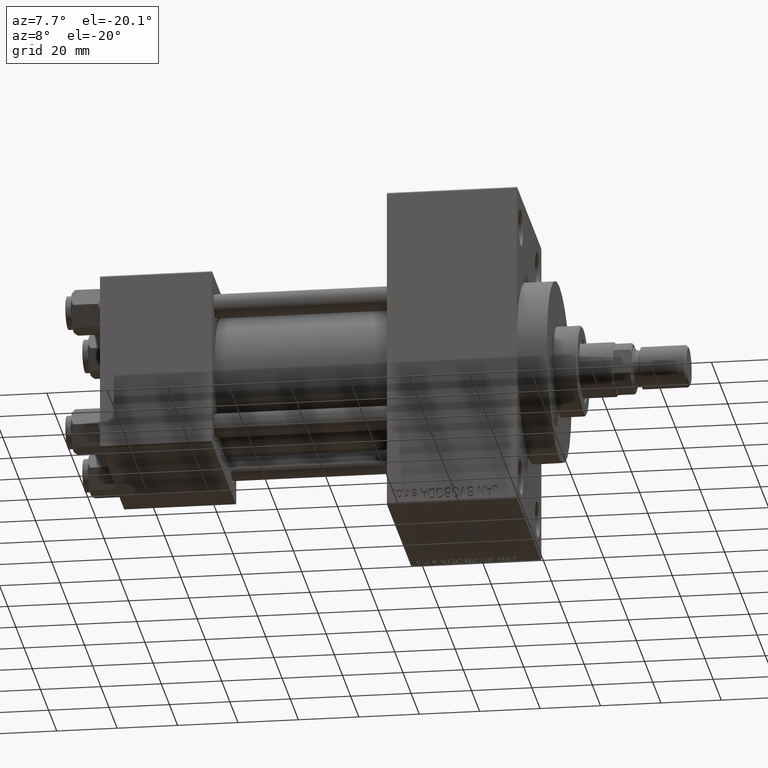
[diagram: clean part render]
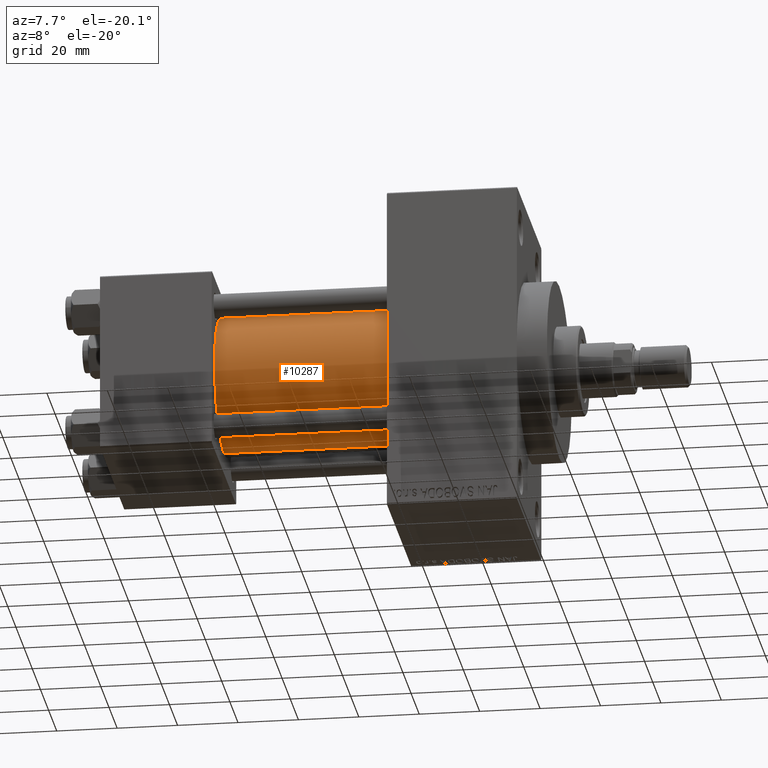
[diagram: same view with one face highlighted and labeled with its STEP entity id]
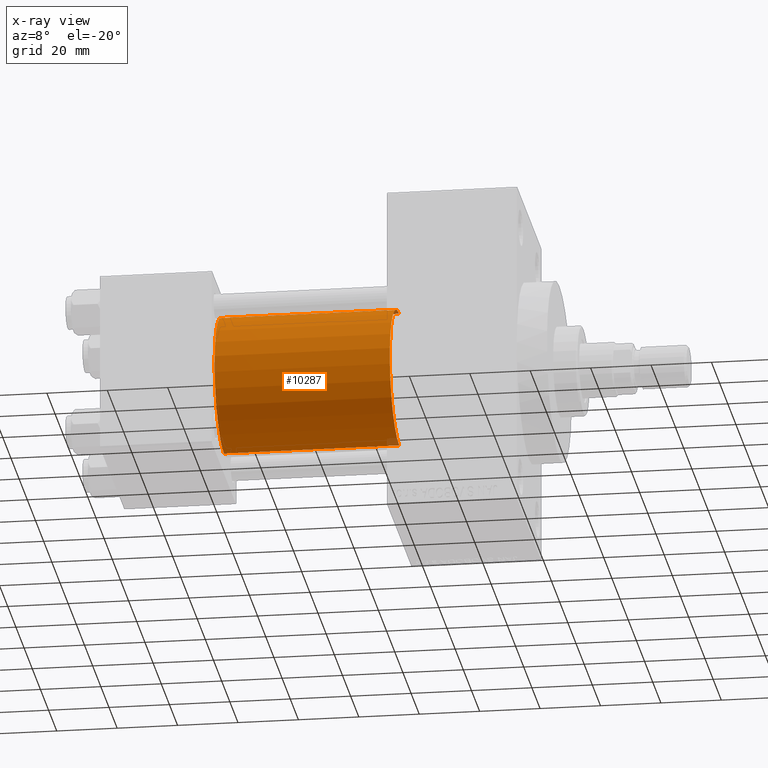
[diagram: x-ray of the same camera — body ghosted, the highlighted face saturated]
A machine part, auxiliary view. The second image highlights one B-rep face of the part: STEP entity #10287.
The next image is the same camera in x-ray: the body ghosted, the highlighted face saturated — about 0% of this face is hidden behind the body in this view.
In plain terms, the highlighted cylindrical surface (partial cylindrical patch) has radius 23 mm, axis along (-1, -0, -0).
Its self-contained STEP definition (entity closure, byte-faithful):
#831 = EDGE_CURVE ( 'NONE', #44845, #29918, #25729, .T. ) ;
#2214 = CARTESIAN_POINT ( 'NONE',  ( 95.00000000000000000, 2.146024240737012665E-16, -23.00000000000000000 ) ) ;
#9807 = EDGE_LOOP ( 'NONE', ( #16737, #47842, #45890, #11962 ) ) ;
#10287 = ADVANCED_FACE ( 'NONE', ( #14788 ), #30908, .T. ) ;
#10947 = CARTESIAN_POINT ( 'NONE',  ( 37.00000000000000000, 2.146024240737012665E-16, -23.00000000000000000 ) ) ;
#11851 = EDGE_CURVE ( 'NONE', #44845, #42695, #44064, .T. ) ;
#11962 = ORIENTED_EDGE ( 'NONE', *, *, #27039, .T. ) ;
#12379 = AXIS2_PLACEMENT_3D ( 'NONE', #13905, #13670, #31652 ) ;
#13670 = DIRECTION ( 'NONE',  ( 1.000000000000000000, -0.000000000000000000, 0.000000000000000000 ) ) ;
#13905 = CARTESIAN_POINT ( 'NONE',  ( 37.00000000000000000, -2.602085213965210642E-15, 0.000000000000000000 ) ) ;
#14435 = DIRECTION ( 'NONE',  ( 1.000000000000000000, 0.000000000000000000, 0.000000000000000000 ) ) ;
#14788 = FACE_OUTER_BOUND ( 'NONE', #9807, .T. ) ;
#15086 = AXIS2_PLACEMENT_3D ( 'NONE', #42216, #30147, #45477 ) ;
#16737 = ORIENTED_EDGE ( 'NONE', *, *, #42625, .F. ) ;
#18950 = DIRECTION ( 'NONE',  ( 0.000000000000000000, 0.000000000000000000, -1.000000000000000000 ) ) ;
#20861 = LINE ( 'NONE', #33178, #42133 ) ;
#21161 = VECTOR ( 'NONE', #29744, 1000.000000000000000 ) ;
#21641 = CARTESIAN_POINT ( 'NONE',  ( 95.00000000000000000, -2.602085213965210642E-15, 23.00000000000000000 ) ) ;
#22187 = CARTESIAN_POINT ( 'NONE',  ( 95.00000000000000000, -2.602085213965210642E-15, 23.00000000000000000 ) ) ;
#25729 = LINE ( 'NONE', #22187, #21161 ) ;
#27039 = EDGE_CURVE ( 'NONE', #29918, #34380, #34043, .T. ) ;
#29744 = DIRECTION ( 'NONE',  ( -1.000000000000000000, -0.000000000000000000, -0.000000000000000000 ) ) ;
#29918 = VERTEX_POINT ( 'NONE', #30655 ) ;
#30147 = DIRECTION ( 'NONE',  ( -1.000000000000000000, -0.000000000000000000, -0.000000000000000000 ) ) ;
#30655 = CARTESIAN_POINT ( 'NONE',  ( 37.00000000000000000, -2.602085213965210642E-15, 23.00000000000000000 ) ) ;
#30908 = CYLINDRICAL_SURFACE ( 'NONE', #15086, 23.00000000000000000 ) ;
#31652 = DIRECTION ( 'NONE',  ( 0.000000000000000000, 0.000000000000000000, 1.000000000000000000 ) ) ;
#33178 = CARTESIAN_POINT ( 'NONE',  ( 95.00000000000000000, 2.146024240737012665E-16, -23.00000000000000000 ) ) ;
#34043 = CIRCLE ( 'NONE', #12379, 23.00000000000000000 ) ;
#34380 = VERTEX_POINT ( 'NONE', #10947 ) ;
#41664 = AXIS2_PLACEMENT_3D ( 'NONE', #48886, #14435, #18950 ) ;
#42133 = VECTOR ( 'NONE', #44743, 1000.000000000000000 ) ;
#42216 = CARTESIAN_POINT ( 'NONE',  ( 95.00000000000000000, -2.602085213965210642E-15, 0.000000000000000000 ) ) ;
#42625 = EDGE_CURVE ( 'NONE', #42695, #34380, #20861, .T. ) ;
#42695 = VERTEX_POINT ( 'NONE', #2214 ) ;
#44064 = CIRCLE ( 'NONE', #41664, 23.00000000000000000 ) ;
#44743 = DIRECTION ( 'NONE',  ( -1.000000000000000000, -0.000000000000000000, -0.000000000000000000 ) ) ;
#44845 = VERTEX_POINT ( 'NONE', #21641 ) ;
#45477 = DIRECTION ( 'NONE',  ( 0.000000000000000000, 0.000000000000000000, 1.000000000000000000 ) ) ;
#45890 = ORIENTED_EDGE ( 'NONE', *, *, #831, .T. ) ;
#47842 = ORIENTED_EDGE ( 'NONE', *, *, #11851, .F. ) ;
#48886 = CARTESIAN_POINT ( 'NONE',  ( 95.00000000000000000, -2.602085213965210642E-15, 0.000000000000000000 ) ) ;